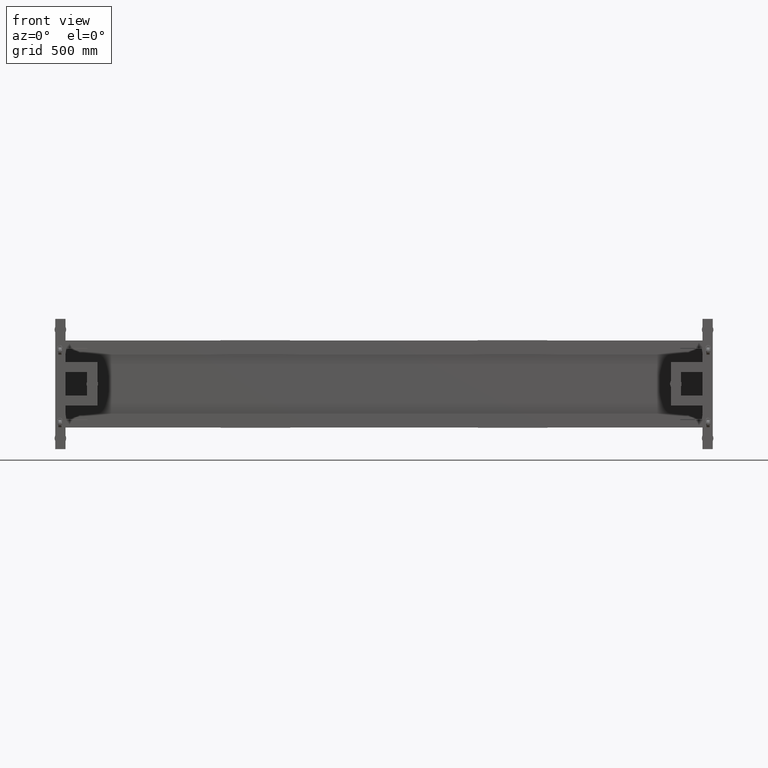
[diagram: clean part render]
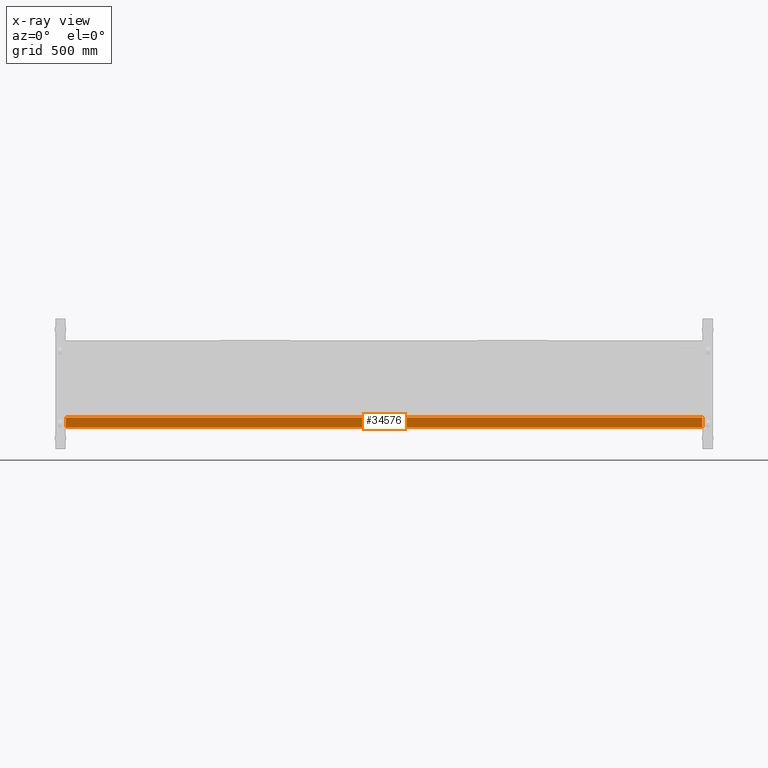
[diagram: x-ray — body ghosted, one internal face saturated and labeled with its STEP entity id]
A machine part, front view, then the same camera in x-ray: the body is ghosted and one INTERNAL B-rep face — a face not visible from any outside direction — is saturated and labeled: STEP entity #34576.
In plain terms, the highlighted planar face has unit normal (-0, -1, -0).
Its self-contained STEP definition (entity closure, byte-faithful):
#830 = DIRECTION ( 'NONE',  ( -1.092267369640097868E-16, -1.000000000000000000, -2.999999999999999839E-15 ) ) ;
#1131 = EDGE_CURVE ( 'NONE', #74245, #67371, #55342, .T. ) ;
#7185 = EDGE_LOOP ( 'NONE', ( #69994, #74480, #79876, #35768 ) ) ;
#7411 = LINE ( 'NONE', #56525, #50628 ) ;
#8654 = DIRECTION ( 'NONE',  ( 1.000000000000000000, -1.092267369640097868E-16, 0.000000000000000000 ) ) ;
#18447 = FACE_OUTER_BOUND ( 'NONE', #7185, .T. ) ;
#19869 = DIRECTION ( 'NONE',  ( -1.035296940874237648E-30, 2.999999999999999839E-15, -1.000000000000000000 ) ) ;
#21473 = EDGE_CURVE ( 'NONE', #74245, #51718, #76576, .T. ) ;
#23615 = AXIS2_PLACEMENT_3D ( 'NONE', #56917, #830, #24597 ) ;
#23954 = CARTESIAN_POINT ( 'NONE',  ( -1266.172487437185964, 554.4410804020122896, -232.4999999999999147 ) ) ;
#24597 = DIRECTION ( 'NONE',  ( 3.276802108920293614E-31, 2.999999999999999839E-15, -1.000000000000000000 ) ) ;
#25952 = CARTESIAN_POINT ( 'NONE',  ( 3129.827512562816537, 554.4410804020133128, -297.4999999999999432 ) ) ;
#33603 = VECTOR ( 'NONE', #8654, 1000.000000000000000 ) ;
#34576 = ADVANCED_FACE ( 'NONE', ( #18447 ), #37684, .T. ) ;
#35768 = ORIENTED_EDGE ( 'NONE', *, *, #80273, .T. ) ;
#37684 = PLANE ( 'NONE',  #23615 ) ;
#39755 = CARTESIAN_POINT ( 'NONE',  ( -66.17248743718451465, 554.4410804020130854, -232.4999999999999147 ) ) ;
#40772 = VERTEX_POINT ( 'NONE', #25952 ) ;
#46068 = LINE ( 'NONE', #58341, #72924 ) ;
#48622 = CARTESIAN_POINT ( 'NONE',  ( -1266.172487437185964, 554.4410804020125170, -297.4999999999999432 ) ) ;
#49214 = DIRECTION ( 'NONE',  ( 0.000000000000000000, 2.999999999999999839E-15, -1.000000000000000000 ) ) ;
#49647 = EDGE_CURVE ( 'NONE', #51718, #40772, #46068, .T. ) ;
#50379 = DIRECTION ( 'NONE',  ( 1.000000000000000000, -1.092267369640097868E-16, 0.000000000000000000 ) ) ;
#50628 = VECTOR ( 'NONE', #50379, 1000.000000000000000 ) ;
#51718 = VERTEX_POINT ( 'NONE', #63887 ) ;
#55342 = LINE ( 'NONE', #80297, #57060 ) ;
#56525 = CARTESIAN_POINT ( 'NONE',  ( -66.17248743718451465, 554.4410804020133128, -297.4999999999999432 ) ) ;
#56917 = CARTESIAN_POINT ( 'NONE',  ( -66.17248743718451465, 554.4410804020130854, -232.4999999999999147 ) ) ;
#57060 = VECTOR ( 'NONE', #49214, 1000.000000000000000 ) ;
#58341 = CARTESIAN_POINT ( 'NONE',  ( 3129.827512562816537, 554.4410804020130854, -232.4999999999999147 ) ) ;
#63887 = CARTESIAN_POINT ( 'NONE',  ( 3129.827512562816537, 554.4410804020130854, -232.4999999999999147 ) ) ;
#67371 = VERTEX_POINT ( 'NONE', #48622 ) ;
#69994 = ORIENTED_EDGE ( 'NONE', *, *, #49647, .F. ) ;
#72924 = VECTOR ( 'NONE', #19869, 1000.000000000000000 ) ;
#74245 = VERTEX_POINT ( 'NONE', #23954 ) ;
#74480 = ORIENTED_EDGE ( 'NONE', *, *, #21473, .F. ) ;
#76576 = LINE ( 'NONE', #39755, #33603 ) ;
#79876 = ORIENTED_EDGE ( 'NONE', *, *, #1131, .T. ) ;
#80273 = EDGE_CURVE ( 'NONE', #67371, #40772, #7411, .T. ) ;
#80297 = CARTESIAN_POINT ( 'NONE',  ( -1266.172487437185964, 554.4410804020122896, -232.4999999999999147 ) ) ;